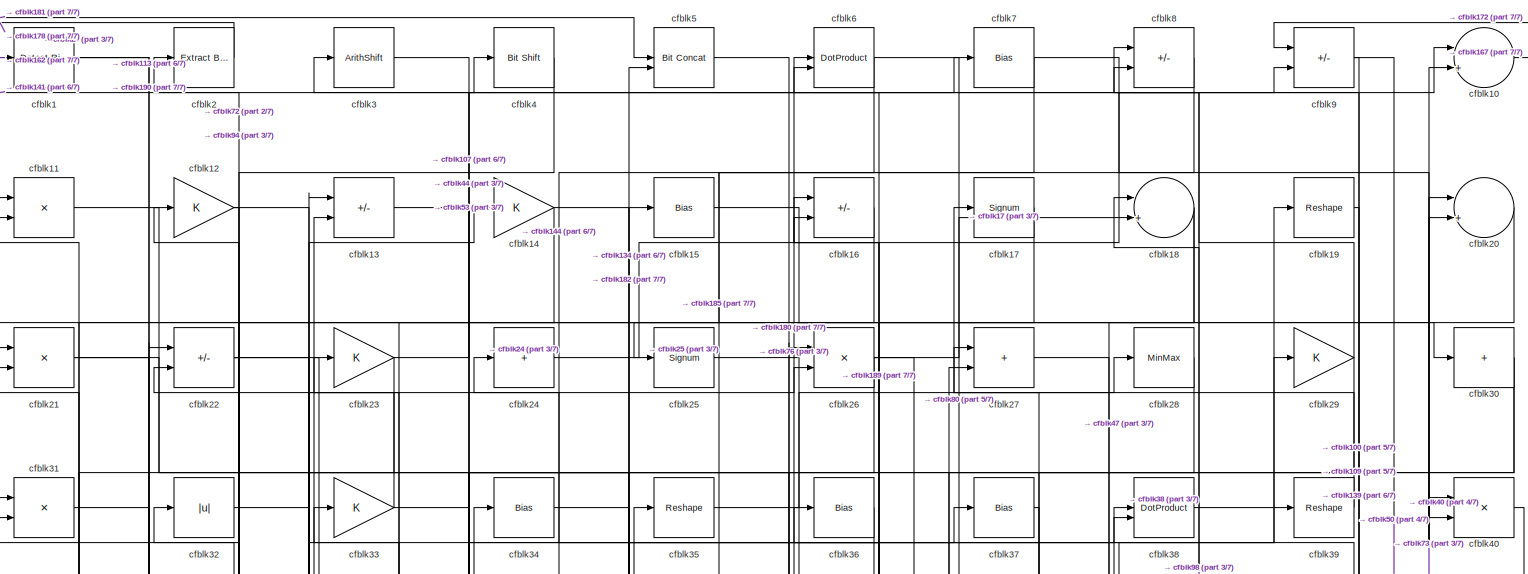
[diagram: root canvas - part 1/7, full width, top band]
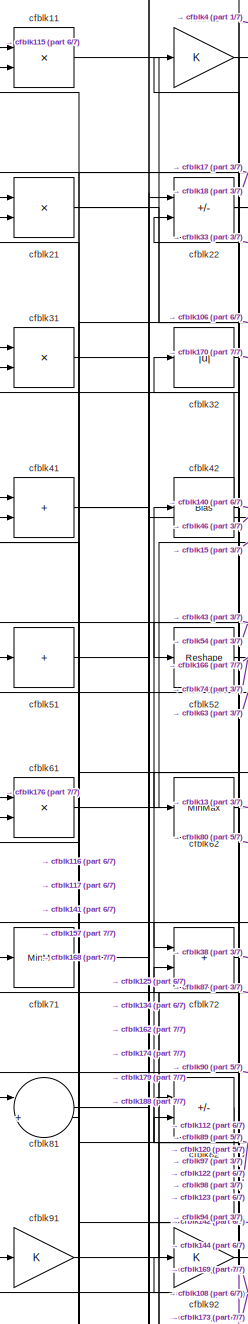
[diagram: root canvas - part 2/7, top left region]
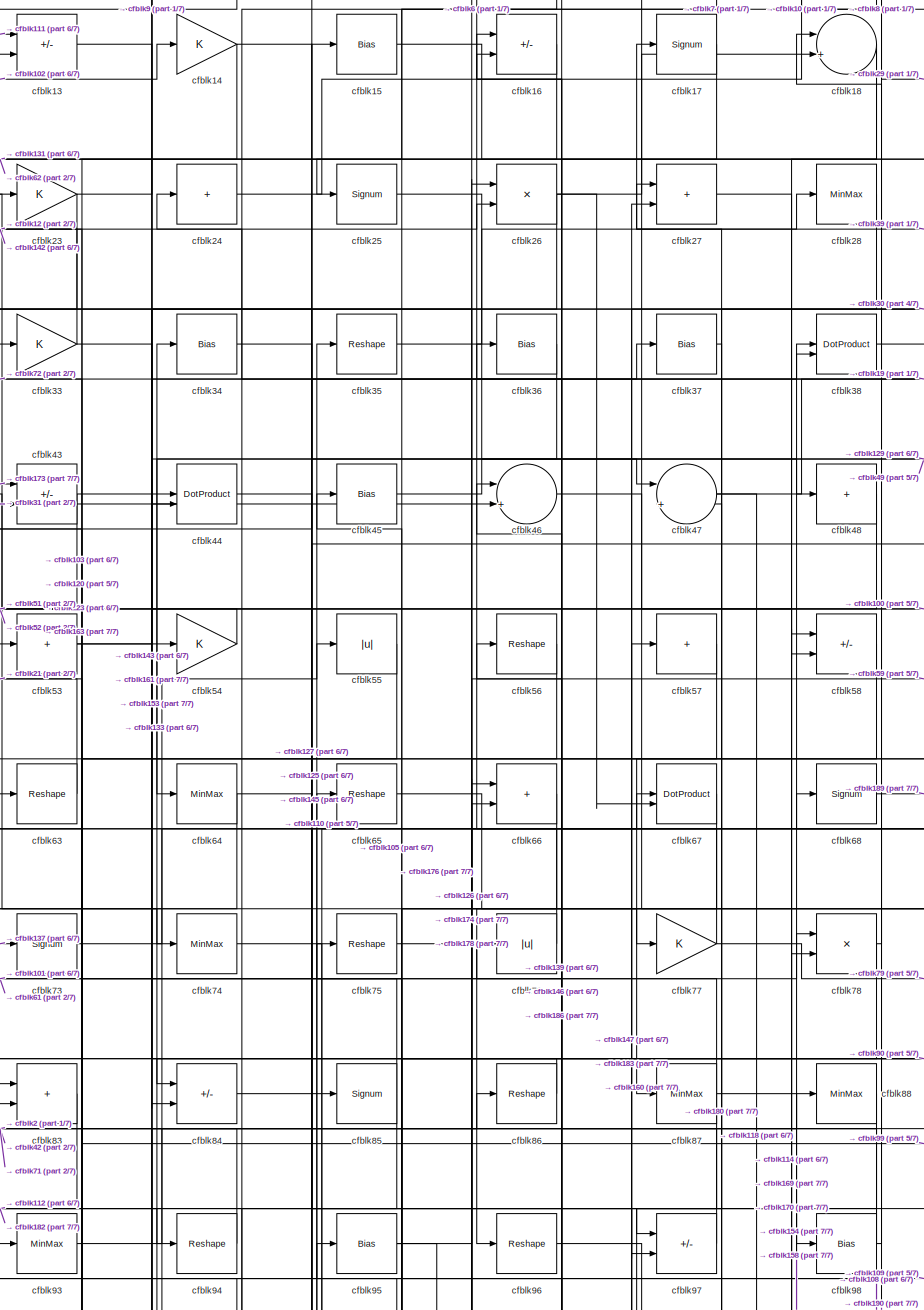
[diagram: root canvas - part 3/7, top center region]
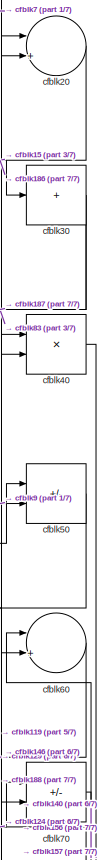
[diagram: root canvas - part 4/7, top right region]
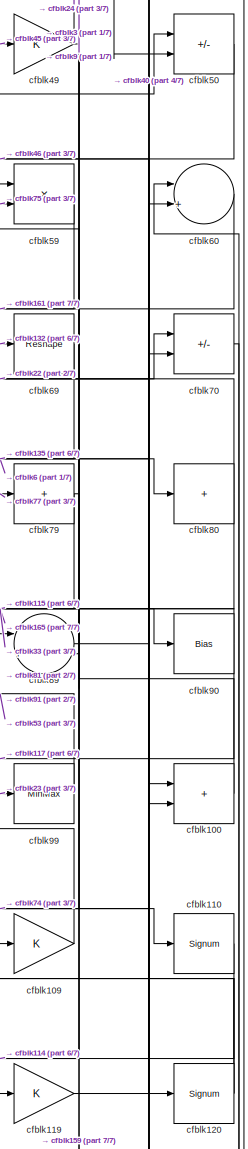
[diagram: root canvas - part 5/7, middle right region]
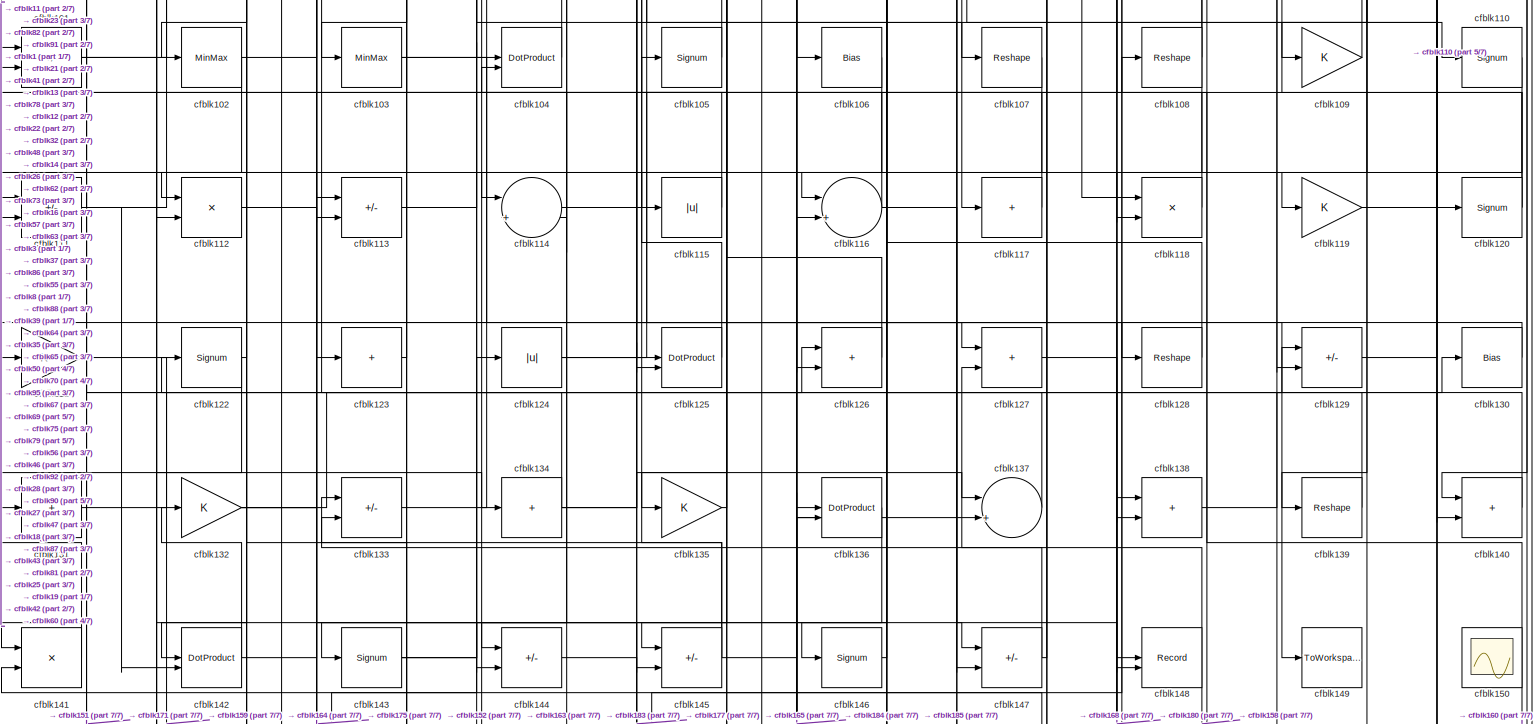
[diagram: root canvas - part 6/7, full width, middle band]
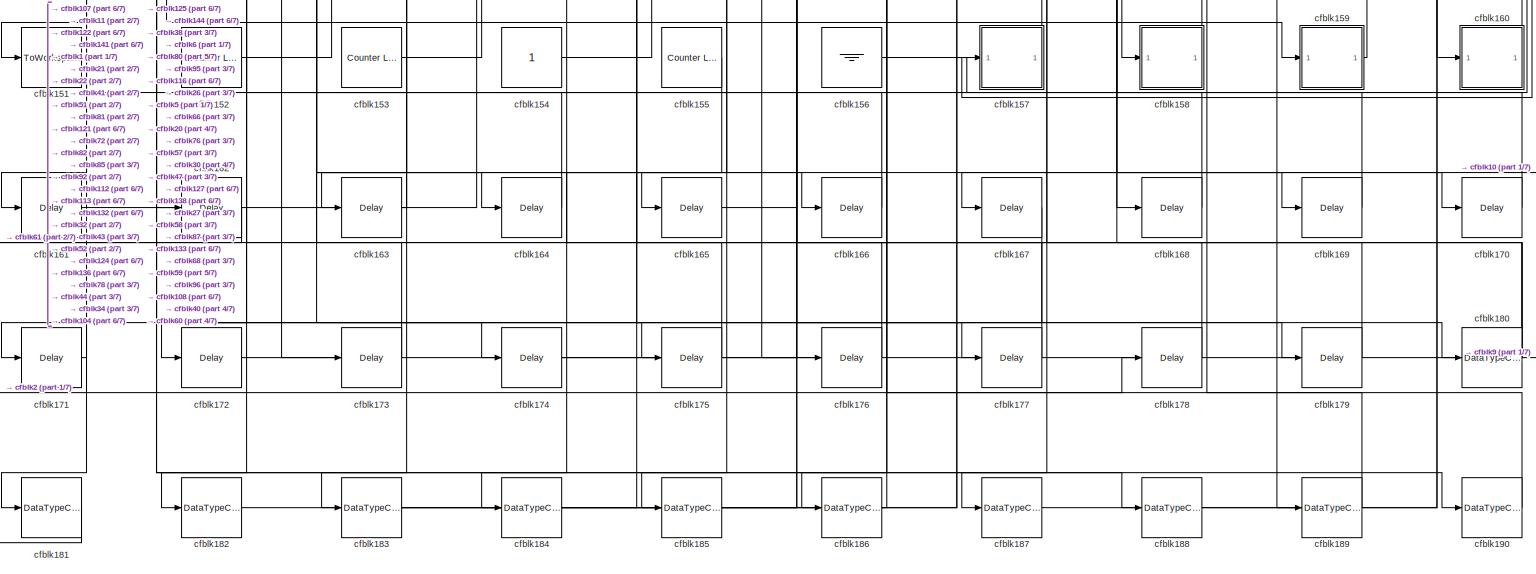
[diagram: root canvas - part 7/7, full width, bottom band]
MODEL slx_7415777194f3
KIND model
CONFIG AbsTol = auto
CONFIG EnableMultiTasking = off
CONFIG FixedStep = auto
CONFIG MaxStep = auto
CONFIG MinStep = auto
CONFIG RelTol = 1e-3
CONFIG SampleTimeConstraint = Unconstrained
CONFIG SolverName = VariableStepAuto
CONFIG StartTime = 0.0
CONFIG StopTime = 10.0
BLOCK [Reference] cfblk1  REF=hdlsllib/Logic and Bit
Operations/Detect Rise
Nonnegative
  SourceBlock = hdlsllib/Logic and Bit\nOperations/Detect Rise\nNonnegative
  SourceType = Detect Rise Nonnegative
BLOCK [Sum] cfblk10
  Inputs = |++
BLOCK [Sum] cfblk100
  IconShape = rectangular
BLOCK [Sum] cfblk101
  IconShape = rectangular
  Inputs = +-
BLOCK [MinMax] cfblk102
BLOCK [MinMax] cfblk103
BLOCK [DotProduct] cfblk104
  OutDataTypeStr = Inherit: Inherit via internal rule
BLOCK [Signum] cfblk105
BLOCK [Bias] cfblk106
  Bias = 0.0
  SaturateOnIntegerOverflow = off
BLOCK [Reshape] cfblk107
BLOCK [Reshape] cfblk108
BLOCK [Gain] cfblk109
BLOCK [Product] cfblk11
  Inputs = */
  RndMeth = Zero
  SaturateOnIntegerOverflow = on
BLOCK [Signum] cfblk110
BLOCK [Sum] cfblk111
  IconShape = rectangular
  Inputs = +-
BLOCK [Product] cfblk112
  Inputs = */
  RndMeth = Zero
  SaturateOnIntegerOverflow = on
BLOCK [Sum] cfblk113
  IconShape = rectangular
  Inputs = +-
BLOCK [Sum] cfblk114
  Inputs = |++
BLOCK [Abs] cfblk115
  SaturateOnIntegerOverflow = off
BLOCK [Sum] cfblk116
  Inputs = |++
BLOCK [Sum] cfblk117
  IconShape = rectangular
  Inputs = +
BLOCK [Product] cfblk118
  Inputs = */
  RndMeth = Zero
  SaturateOnIntegerOverflow = on
BLOCK [Gain] cfblk119
BLOCK [Gain] cfblk12
BLOCK [Signum] cfblk120
BLOCK [Gain] cfblk121
BLOCK [Signum] cfblk122
BLOCK [Sum] cfblk123
  IconShape = rectangular
  Inputs = +
BLOCK [Abs] cfblk124
  SaturateOnIntegerOverflow = off
BLOCK [DotProduct] cfblk125
  OutDataTypeStr = Inherit: Inherit via internal rule
BLOCK [Sum] cfblk126
  IconShape = rectangular
BLOCK [Sum] cfblk127
  IconShape = rectangular
BLOCK [Reshape] cfblk128
BLOCK [Sum] cfblk129
  IconShape = rectangular
  Inputs = +-
BLOCK [Sum] cfblk13
  IconShape = rectangular
  Inputs = +-
BLOCK [Bias] cfblk130
  Bias = 0.0
  SaturateOnIntegerOverflow = off
BLOCK [Sum] cfblk131
  IconShape = rectangular
  Inputs = +
BLOCK [Gain] cfblk132
BLOCK [Sum] cfblk133
  IconShape = rectangular
  Inputs = +-
BLOCK [Sum] cfblk134
  IconShape = rectangular
  Inputs = +
BLOCK [Gain] cfblk135
BLOCK [DotProduct] cfblk136
  OutDataTypeStr = Inherit: Inherit via internal rule
BLOCK [Sum] cfblk137
  Inputs = |++
BLOCK [Sum] cfblk138
  IconShape = rectangular
BLOCK [Reshape] cfblk139
BLOCK [Gain] cfblk14
BLOCK [Sum] cfblk140
  IconShape = rectangular
BLOCK [Product] cfblk141
  Inputs = */
  RndMeth = Zero
  SaturateOnIntegerOverflow = on
BLOCK [DotProduct] cfblk142
  OutDataTypeStr = Inherit: Inherit via internal rule
BLOCK [Signum] cfblk143
BLOCK [Sum] cfblk144
  IconShape = rectangular
  Inputs = +-
BLOCK [Sum] cfblk145
  IconShape = rectangular
  Inputs = +-
BLOCK [Signum] cfblk146
BLOCK [Sum] cfblk147
  IconShape = rectangular
  Inputs = +-
BLOCK [Record] cfblk148
  CompatibilityTag = XY
  FileSettingsInternal = {"entries":[{"content":{"excelSettings":{"content":{},"type":"Streamout.ExcelSettings"}},"type":"Streamout.FileSettingStorage","uuid":""}],"packageUris":["http:\/\/schema.mathworks.com\/mf0\/streamout_blocks\/R2020a"],"version":"1.0"}
  Layout = [1 1]
  SignalsInternal = {"entries":[{"content":{},"type":"RecordBlkView.InputSignals","uuid":""}],"packageUris":["http:\/\/schema.mathworks.com\/mf0\/streamout_blocks\/R2020a"],"version":"1.0"}
  VisualizationBindings = {"xyplotplugin":{"info":[{"series":[{"bindingParametersList":[{"parameter":"X-Axis","signalID":464,"signalName":"cfblk114"},{"parameter":"Y-Axis","signalID":468,"signalName":"cfblk116"}],"seriesID":58657}],"subplotID":1}]}}
  st = -1
BLOCK [ToWorkspace] cfblk149
  MaxDataPoints = inf
  SampleTime = -1
  SaveFormat = Timeseries
  VariableName = simout
BLOCK [Bias] cfblk15
  Bias = 0.0
  SaturateOnIntegerOverflow = off
BLOCK [Scope] cfblk150
  Floating = on
  NumInputPorts = 1
  ScopeSpecificationString = Simulink.scopes.TimeScopeBlockCfg('CurrentConfiguration', extmgr.ConfigurationSet(extmgr.Configuration('Core','General UI',true,'FigureColor',[0.156862745098039 0.156862745098039 0.156862745098039]),extmgr.Configuration('Core','Source UI',true),extmgr.Configuration('Sources','WiredSimulink',true,'DataLoggingVariableName','ScopeData1','DataLoggingSaveFormat','StructureWithTime','DataLoggingLimitDat...<+2713ch>
BLOCK [ToWorkspace] cfblk151
  MaxDataPoints = inf
  SampleTime = -1
  SaveFormat = Timeseries
  VariableName = simout
BLOCK [Reference] cfblk152  REF=hdlsllib/Sources/Counter
Limited
  SourceBlock = hdlsllib/Sources/Counter\nLimited
  SourceType = Counter Limited
BLOCK [Reference] cfblk153  REF=hdlsllib/Sources/Counter
Limited
  SourceBlock = hdlsllib/Sources/Counter\nLimited
  SourceType = Counter Limited
BLOCK [Constant] cfblk154
  SampleTime = -1
BLOCK [Reference] cfblk155  REF=hdlsllib/Sources/Counter
Limited
  SourceBlock = hdlsllib/Sources/Counter\nLimited
  SourceType = Counter Limited
BLOCK [Ground] cfblk156
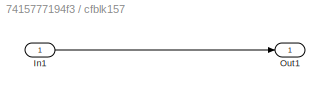
BLOCK [SubSystem] cfblk157
  LibrarySourceBlock = hdlsllib/Ports &\nSubsystems/Subsystem
BLOCK [Inport] cfblk157/In1
BLOCK [Outport] cfblk157/Out1
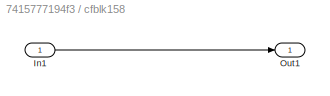
BLOCK [SubSystem] cfblk158
  LibrarySourceBlock = hdlsllib/Ports &\nSubsystems/Subsystem
BLOCK [Inport] cfblk158/In1
BLOCK [Outport] cfblk158/Out1
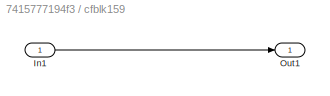
BLOCK [SubSystem] cfblk159
  LibrarySourceBlock = hdlsllib/Ports &\nSubsystems/Subsystem
BLOCK [Inport] cfblk159/In1
BLOCK [Outport] cfblk159/Out1
BLOCK [Sum] cfblk16
  IconShape = rectangular
  Inputs = +-
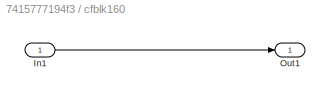
BLOCK [SubSystem] cfblk160
  LibrarySourceBlock = hdlsllib/Ports &\nSubsystems/Subsystem
BLOCK [Inport] cfblk160/In1
BLOCK [Outport] cfblk160/Out1
BLOCK [Delay] cfblk161
  InputPortMap = u0
  SampleTime = 1
BLOCK [Delay] cfblk162
  InputPortMap = u0
  SampleTime = 1
BLOCK [Delay] cfblk163
  InputPortMap = u0
  SampleTime = 1
BLOCK [Delay] cfblk164
  InputPortMap = u0
  SampleTime = 1
BLOCK [Delay] cfblk165
  InputPortMap = u0
  SampleTime = 1
BLOCK [Delay] cfblk166
  InputPortMap = u0
  SampleTime = 1
BLOCK [Delay] cfblk167
  InputPortMap = u0
  SampleTime = 1
BLOCK [Delay] cfblk168
  InputPortMap = u0
  SampleTime = 1
BLOCK [Delay] cfblk169
  InputPortMap = u0
  SampleTime = 1
BLOCK [Signum] cfblk17
BLOCK [Delay] cfblk170
  InputPortMap = u0
  SampleTime = 1
BLOCK [Delay] cfblk171
  InputPortMap = u0
  SampleTime = 1
BLOCK [Delay] cfblk172
  InputPortMap = u0
  SampleTime = 1
BLOCK [Delay] cfblk173
  InputPortMap = u0
  SampleTime = 1
BLOCK [Delay] cfblk174
  InputPortMap = u0
  SampleTime = 1
BLOCK [Delay] cfblk175
  InputPortMap = u0
  SampleTime = 1
BLOCK [Delay] cfblk176
  InputPortMap = u0
  SampleTime = 1
BLOCK [Delay] cfblk177
  InputPortMap = u0
  SampleTime = 1
BLOCK [Delay] cfblk178
  InputPortMap = u0
  SampleTime = 1
BLOCK [Delay] cfblk179
  InputPortMap = u0
  SampleTime = 1
BLOCK [Sum] cfblk18
  Inputs = |++
BLOCK [DataTypeConversion] cfblk180
  RndMeth = Floor
  SaturateOnIntegerOverflow = off
BLOCK [DataTypeConversion] cfblk181
  OutDataTypeStr = uint8
  RndMeth = Floor
  SaturateOnIntegerOverflow = off
BLOCK [DataTypeConversion] cfblk182
  OutDataTypeStr = uint8
  RndMeth = Floor
  SaturateOnIntegerOverflow = off
BLOCK [DataTypeConversion] cfblk183
  RndMeth = Floor
  SaturateOnIntegerOverflow = off
BLOCK [DataTypeConversion] cfblk184
  OutDataTypeStr = uint8
  RndMeth = Floor
  SaturateOnIntegerOverflow = off
BLOCK [DataTypeConversion] cfblk185
  OutDataTypeStr = uint8
  RndMeth = Floor
  SaturateOnIntegerOverflow = off
BLOCK [DataTypeConversion] cfblk186
  OutDataTypeStr = uint8
  RndMeth = Floor
  SaturateOnIntegerOverflow = off
BLOCK [DataTypeConversion] cfblk187
  OutDataTypeStr = uint8
  RndMeth = Floor
  SaturateOnIntegerOverflow = off
BLOCK [DataTypeConversion] cfblk188
  OutDataTypeStr = uint8
  RndMeth = Floor
  SaturateOnIntegerOverflow = off
BLOCK [DataTypeConversion] cfblk189
  OutDataTypeStr = uint8
  RndMeth = Floor
  SaturateOnIntegerOverflow = off
BLOCK [Reshape] cfblk19
BLOCK [DataTypeConversion] cfblk190
  OutDataTypeStr = uint8
  RndMeth = Floor
  SaturateOnIntegerOverflow = off
BLOCK [Reference] cfblk2  REF=simulink/Logic and Bit
Operations/Extract Bits
  LibrarySourceBlock = hdlsllib/Logic and Bit\nOperations/Extract Bits
  SourceBlock = simulink/Logic and Bit\nOperations/Extract Bits
  SourceType = Extract Bits
BLOCK [Sum] cfblk20
  Inputs = |++
BLOCK [Product] cfblk21
  Inputs = */
  RndMeth = Zero
  SaturateOnIntegerOverflow = on
BLOCK [Sum] cfblk22
  IconShape = rectangular
  Inputs = +-
BLOCK [Gain] cfblk23
BLOCK [Sum] cfblk24
  IconShape = rectangular
  Inputs = +
BLOCK [Signum] cfblk25
BLOCK [Product] cfblk26
  Inputs = */
  RndMeth = Zero
  SaturateOnIntegerOverflow = on
BLOCK [Sum] cfblk27
  IconShape = rectangular
BLOCK [MinMax] cfblk28
BLOCK [Gain] cfblk29
BLOCK [ArithShift] cfblk3
  BitShiftNumber = 8
  InputPortMap = u0
BLOCK [Sum] cfblk30
  IconShape = rectangular
  Inputs = +
BLOCK [Product] cfblk31
  Inputs = */
  RndMeth = Zero
  SaturateOnIntegerOverflow = on
BLOCK [Abs] cfblk32
  SaturateOnIntegerOverflow = off
BLOCK [Gain] cfblk33
BLOCK [Bias] cfblk34
  Bias = 0.0
  SaturateOnIntegerOverflow = off
BLOCK [Reshape] cfblk35
BLOCK [Bias] cfblk36
  Bias = 0.0
  SaturateOnIntegerOverflow = off
BLOCK [Bias] cfblk37
  Bias = 0.0
  SaturateOnIntegerOverflow = off
BLOCK [DotProduct] cfblk38
  OutDataTypeStr = Inherit: Inherit via internal rule
BLOCK [Reshape] cfblk39
BLOCK [Reference] cfblk4  REF=hdlsllib/Logic and Bit
Operations/Bit Shift
  SourceBlock = hdlsllib/Logic and Bit\nOperations/Bit Shift
  SourceType = Bit Shift
BLOCK [Product] cfblk40
  Inputs = */
  RndMeth = Zero
  SaturateOnIntegerOverflow = on
BLOCK [Sum] cfblk41
  IconShape = rectangular
BLOCK [Bias] cfblk42
  Bias = 0.0
  SaturateOnIntegerOverflow = off
BLOCK [Sum] cfblk43
  IconShape = rectangular
  Inputs = +-
BLOCK [DotProduct] cfblk44
  OutDataTypeStr = Inherit: Inherit via internal rule
BLOCK [Bias] cfblk45
  Bias = 0.0
  SaturateOnIntegerOverflow = off
BLOCK [Sum] cfblk46
  Inputs = |++
BLOCK [Sum] cfblk47
  Inputs = |++
BLOCK [Sum] cfblk48
  IconShape = rectangular
  Inputs = +
BLOCK [Gain] cfblk49
BLOCK [Reference] cfblk5  REF=hdlsllib/Logic and Bit
Operations/Bit Concat
  SourceBlock = hdlsllib/Logic and Bit\nOperations/Bit Concat
  SourceType = Bit Concat
BLOCK [Sum] cfblk50
  IconShape = rectangular
  Inputs = +-
BLOCK [Sum] cfblk51
  IconShape = rectangular
  Inputs = +
BLOCK [Reshape] cfblk52
BLOCK [Sum] cfblk53
  IconShape = rectangular
  Inputs = +
BLOCK [Gain] cfblk54
BLOCK [Abs] cfblk55
  SaturateOnIntegerOverflow = off
BLOCK [Reshape] cfblk56
BLOCK [Sum] cfblk57
  IconShape = rectangular
  Inputs = +
BLOCK [Sum] cfblk58
  IconShape = rectangular
  Inputs = +-
BLOCK [Product] cfblk59
  Inputs = */
  RndMeth = Zero
  SaturateOnIntegerOverflow = on
BLOCK [DotProduct] cfblk6
  OutDataTypeStr = Inherit: Inherit via internal rule
BLOCK [Sum] cfblk60
  Inputs = |++
BLOCK [Product] cfblk61
  Inputs = */
  RndMeth = Zero
  SaturateOnIntegerOverflow = on
BLOCK [MinMax] cfblk62
BLOCK [Reshape] cfblk63
BLOCK [MinMax] cfblk64
BLOCK [Reshape] cfblk65
BLOCK [Sum] cfblk66
  IconShape = rectangular
BLOCK [DotProduct] cfblk67
  OutDataTypeStr = Inherit: Inherit via internal rule
BLOCK [Signum] cfblk68
BLOCK [Reshape] cfblk69
BLOCK [Bias] cfblk7
  Bias = 0.0
  SaturateOnIntegerOverflow = off
BLOCK [Sum] cfblk70
  IconShape = rectangular
  Inputs = +-
BLOCK [MinMax] cfblk71
BLOCK [Sum] cfblk72
  IconShape = rectangular
BLOCK [Signum] cfblk73
BLOCK [MinMax] cfblk74
BLOCK [Reshape] cfblk75
BLOCK [Abs] cfblk76
  SaturateOnIntegerOverflow = off
BLOCK [Gain] cfblk77
BLOCK [Product] cfblk78
  Inputs = */
  RndMeth = Zero
  SaturateOnIntegerOverflow = on
BLOCK [Sum] cfblk79
  IconShape = rectangular
  Inputs = +
BLOCK [Sum] cfblk8
  IconShape = rectangular
  Inputs = +-
BLOCK [Sum] cfblk80
  IconShape = rectangular
  Inputs = +
BLOCK [Sum] cfblk81
  Inputs = |++
BLOCK [Sum] cfblk82
  IconShape = rectangular
  Inputs = +-
BLOCK [Sum] cfblk83
  IconShape = rectangular
BLOCK [Sum] cfblk84
  IconShape = rectangular
  Inputs = +-
BLOCK [Signum] cfblk85
BLOCK [Reshape] cfblk86
BLOCK [MinMax] cfblk87
BLOCK [MinMax] cfblk88
BLOCK [Sum] cfblk89
  Inputs = |++
BLOCK [Sum] cfblk9
  IconShape = rectangular
  Inputs = +-
BLOCK [Bias] cfblk90
  Bias = 0.0
  SaturateOnIntegerOverflow = off
BLOCK [Gain] cfblk91
BLOCK [Gain] cfblk92
BLOCK [MinMax] cfblk93
BLOCK [Reshape] cfblk94
BLOCK [Bias] cfblk95
  Bias = 0.0
  SaturateOnIntegerOverflow = off
BLOCK [Reshape] cfblk96
BLOCK [Sum] cfblk97
  IconShape = rectangular
  Inputs = +-
BLOCK [Bias] cfblk98
  Bias = 0.0
  SaturateOnIntegerOverflow = off
BLOCK [MinMax] cfblk99
LINE cfblk100:1 -> cfblk3:1
NET cfblk101:1 -> cfblk145:2, cfblk78:1
NET cfblk102:1 -> cfblk111:2, cfblk14:1
NET cfblk103:1 -> cfblk149:1, cfblk37:1
LINE cfblk104:1 -> cfblk82:1
LINE cfblk105:1 -> cfblk95:1
LINE cfblk106:1 -> cfblk116:1
LINE cfblk107:1 -> cfblk151:1
NET cfblk108:1 -> cfblk138:2, cfblk43:2, cfblk81:2
LINE cfblk109:1 -> cfblk45:1
LINE cfblk10:1 -> cfblk167:1
LINE cfblk110:1 -> cfblk114:1
NET cfblk111:1 -> cfblk13:1, cfblk142:2
LINE cfblk112:1 -> cfblk164:1
LINE cfblk113:1 -> cfblk104:1
NET cfblk114:1 -> cfblk148:1, cfblk78:2
LINE cfblk115:1 -> cfblk11:1
NET cfblk116:1 -> cfblk148:2, cfblk21:2
LINE cfblk117:1 -> cfblk41:1
LINE cfblk118:1 -> cfblk16:1
LINE cfblk119:1 -> cfblk40:1
LINE cfblk11:1 -> cfblk106:1
NET cfblk120:1 -> cfblk23:1, cfblk99:1
LINE cfblk121:1 -> cfblk159:1
NET cfblk122:1 -> cfblk171:1, cfblk32:1
LINE cfblk123:1 -> cfblk63:1
NET cfblk124:1 -> cfblk50:1, cfblk70:1
LINE cfblk125:1 -> cfblk65:1
LINE cfblk126:1 -> cfblk75:1
LINE cfblk127:1 -> cfblk168:1
LINE cfblk128:1 -> cfblk92:1
LINE cfblk129:1 -> cfblk60:2
NET cfblk12:1 -> cfblk112:1, cfblk123:1
LINE cfblk130:1 -> cfblk121:1
LINE cfblk131:1 -> cfblk126:1
NET cfblk132:1 -> cfblk129:1, cfblk175:1, cfblk69:1
LINE cfblk133:1 -> cfblk55:1
NET cfblk134:1 -> cfblk101:1, cfblk137:1, cfblk39:1
LINE cfblk135:1 -> cfblk105:1
LINE cfblk136:1 -> cfblk183:1
LINE cfblk137:1 -> cfblk73:1
LINE cfblk138:1 -> cfblk130:1
LINE cfblk139:1 -> cfblk46:1
LINE cfblk13:1 -> cfblk47:1
LINE cfblk140:1 -> cfblk91:1
LINE cfblk141:1 -> cfblk4:1
NET cfblk142:1 -> cfblk132:1, cfblk26:2
NET cfblk143:1 -> cfblk147:1, cfblk86:1
LINE cfblk144:1 -> cfblk177:1
NET cfblk145:1 -> cfblk122:1, cfblk137:2, cfblk35:1
LINE cfblk146:1 -> cfblk56:1
NET cfblk147:1 -> cfblk127:2, cfblk27:1
NET cfblk14:1 -> cfblk131:1, cfblk97:2
LINE cfblk152:1 -> cfblk124:1
LINE cfblk153:1 -> cfblk34:1
LINE cfblk154:1 -> cfblk38:1
LINE cfblk155:1 -> cfblk184:1
LINE cfblk156:1 -> cfblk60:1
LINE cfblk157/In1:1 -> cfblk157/Out1:1
LINE cfblk157:1 -> cfblk41:2
LINE cfblk158/In1:1 -> cfblk158/Out1:1
LINE cfblk158:1 -> cfblk133:1
LINE cfblk159/In1:1 -> cfblk159/Out1:1
LINE cfblk159:1 -> cfblk59:1
LINE cfblk15:1 -> cfblk30:1
LINE cfblk160/In1:1 -> cfblk160/Out1:1
LINE cfblk160:1 -> cfblk108:1
LINE cfblk161:1 -> cfblk44:1
LINE cfblk162:1 -> cfblk1:1
LINE cfblk163:1 -> cfblk133:2
LINE cfblk164:1 -> cfblk113:1
LINE cfblk165:1 -> cfblk116:2
LINE cfblk166:1 -> cfblk22:1
LINE cfblk167:1 -> cfblk181:1
LINE cfblk168:1 -> cfblk11:2
LINE cfblk169:1 -> cfblk72:2
LINE cfblk16:1 -> cfblk103:1
LINE cfblk170:1 -> cfblk58:1
LINE cfblk171:1 -> cfblk141:2
LINE cfblk172:1 -> cfblk9:1
LINE cfblk173:1 -> cfblk43:1
LINE cfblk174:1 -> cfblk66:2
LINE cfblk175:1 -> cfblk104:2
LINE cfblk176:1 -> cfblk61:1
LINE cfblk177:1 -> cfblk125:1
LINE cfblk178:1 -> cfblk26:1
LINE cfblk179:1 -> cfblk82:2
LINE cfblk17:1 -> cfblk62:1
NET cfblk180:1 -> cfblk138:1, cfblk47:2, cfblk66:1
LINE cfblk181:1 -> cfblk5:1
LINE cfblk182:1 -> cfblk5:2
NET cfblk183:1 -> cfblk27:2, cfblk57:1
LINE cfblk184:1 -> cfblk136:1
LINE cfblk185:1 -> cfblk136:2
LINE cfblk186:1 -> cfblk76:1
LINE cfblk187:1 -> cfblk20:1
LINE cfblk188:1 -> cfblk20:2
LINE cfblk189:1 -> cfblk6:2
NET cfblk18:1 -> cfblk118:2, cfblk31:2
LINE cfblk190:1 -> cfblk68:1
LINE cfblk19:1 -> cfblk139:1
NET cfblk1:1 -> cfblk113:2, cfblk190:1
LINE cfblk20:1 -> cfblk186:1
NET cfblk21:1 -> cfblk125:2, cfblk179:1
NET cfblk22:1 -> cfblk120:1, cfblk142:1, cfblk144:2
NET cfblk23:1 -> cfblk111:1, cfblk7:1
LINE cfblk24:1 -> cfblk10:1
LINE cfblk25:1 -> cfblk129:2
NET cfblk26:1 -> cfblk18:2, cfblk67:2, cfblk84:2
LINE cfblk27:1 -> cfblk169:1
LINE cfblk28:1 -> cfblk147:2
NET cfblk29:1 -> cfblk44:2, cfblk8:2
LINE cfblk2:1 -> cfblk178:1
NET cfblk30:1 -> cfblk187:1, cfblk83:2
LINE cfblk31:1 -> cfblk46:2
LINE cfblk32:1 -> cfblk170:1
NET cfblk33:1 -> cfblk12:1, cfblk90:1
LINE cfblk34:1 -> cfblk48:1
LINE cfblk35:1 -> cfblk28:1
LINE cfblk36:1 -> cfblk64:1
LINE cfblk37:1 -> cfblk97:1
LINE cfblk38:1 -> cfblk29:1
LINE cfblk39:1 -> cfblk17:1
LINE cfblk3:1 -> cfblk107:1
LINE cfblk40:1 -> cfblk157:1
NET cfblk41:1 -> cfblk134:1, cfblk174:1
NET cfblk42:1 -> cfblk140:2, cfblk31:1
NET cfblk43:1 -> cfblk51:1, cfblk58:2
LINE cfblk44:1 -> cfblk85:1
LINE cfblk45:1 -> cfblk49:1
LINE cfblk46:1 -> cfblk100:1
NET cfblk47:1 -> cfblk118:1, cfblk19:1
LINE cfblk48:1 -> cfblk102:1
NET cfblk49:1 -> cfblk119:1, cfblk24:1
LINE cfblk4:1 -> cfblk72:1
LINE cfblk50:1 -> cfblk70:2
LINE cfblk51:1 -> cfblk162:1
NET cfblk52:1 -> cfblk166:1, cfblk74:1
NET cfblk53:1 -> cfblk54:1, cfblk9:2
LINE cfblk54:1 -> cfblk52:1
LINE cfblk55:1 -> cfblk83:1
LINE cfblk56:1 -> cfblk126:2
LINE cfblk57:1 -> cfblk143:1
LINE cfblk58:1 -> cfblk77:1
LINE cfblk59:1 -> cfblk161:1
LINE cfblk5:1 -> cfblk180:1
LINE cfblk60:1 -> cfblk146:1
LINE cfblk61:1 -> cfblk15:1
NET cfblk62:1 -> cfblk128:1, cfblk13:2
LINE cfblk63:1 -> cfblk21:1
NET cfblk64:1 -> cfblk101:2, cfblk127:1
LINE cfblk65:1 -> cfblk87:1
LINE cfblk66:1 -> cfblk96:1
LINE cfblk67:1 -> cfblk145:1
LINE cfblk68:1 -> cfblk189:1
LINE cfblk69:1 -> cfblk135:1
NET cfblk6:1 -> cfblk185:1, cfblk80:1
LINE cfblk70:1 -> cfblk140:1
LINE cfblk71:1 -> cfblk94:1
LINE cfblk72:1 -> cfblk38:2
LINE cfblk73:1 -> cfblk10:2
LINE cfblk74:1 -> cfblk110:1
LINE cfblk75:1 -> cfblk59:2
LINE cfblk76:1 -> cfblk6:1
NET cfblk77:1 -> cfblk36:1, cfblk79:1
NET cfblk78:1 -> cfblk163:1, cfblk18:1
NET cfblk79:1 -> cfblk115:1, cfblk89:2
NET cfblk7:1 -> cfblk25:1, cfblk40:2
NET cfblk80:1 -> cfblk165:1, cfblk22:2
LINE cfblk81:1 -> cfblk188:1
LINE cfblk82:1 -> cfblk141:1
LINE cfblk83:1 -> cfblk93:1
LINE cfblk84:1 -> cfblk98:1
NET cfblk85:1 -> cfblk182:1, cfblk33:1
LINE cfblk86:1 -> cfblk84:1
NET cfblk87:1 -> cfblk112:2, cfblk158:1, cfblk61:2
LINE cfblk88:1 -> cfblk114:2
LINE cfblk89:1 -> cfblk100:2
LINE cfblk8:1 -> cfblk144:1
NET cfblk90:1 -> cfblk117:1, cfblk81:1
LINE cfblk91:1 -> cfblk89:1
NET cfblk92:1 -> cfblk172:1, cfblk173:1
LINE cfblk93:1 -> cfblk88:1
LINE cfblk94:1 -> cfblk2:1
NET cfblk95:1 -> cfblk176:1, cfblk67:1
LINE cfblk96:1 -> cfblk160:1
LINE cfblk97:1 -> cfblk42:1
NET cfblk98:1 -> cfblk16:2, cfblk71:1, cfblk8:1
LINE cfblk99:1 -> cfblk53:1
NET cfblk9:1 -> cfblk109:1, cfblk50:2
note: NET lines group one-source signal fan-out (src -> all destinations, sorted); 1:1 wires keep LINE
